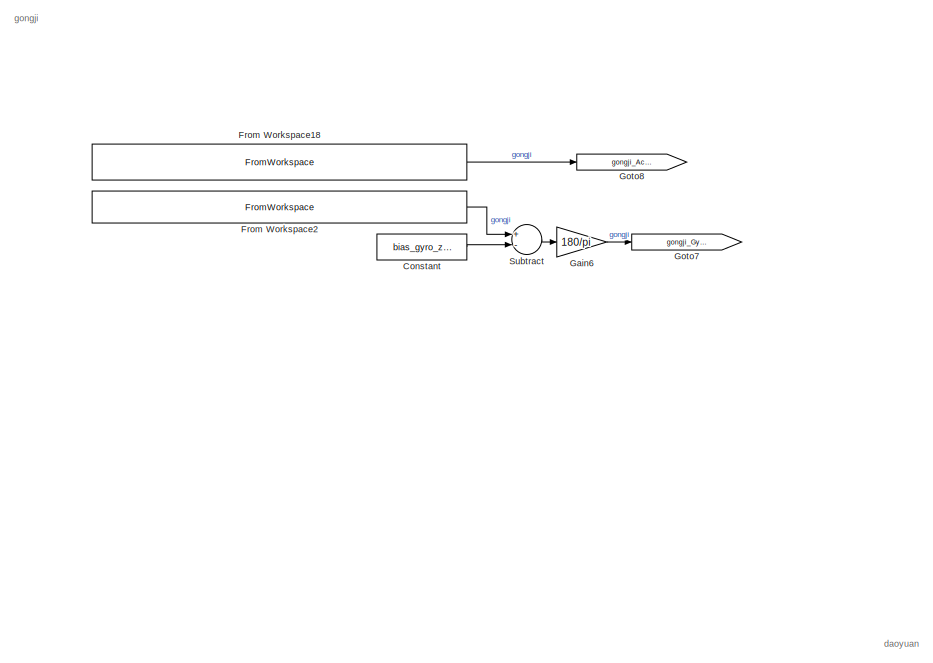
[diagram: root canvas - part 1/4, top left region]
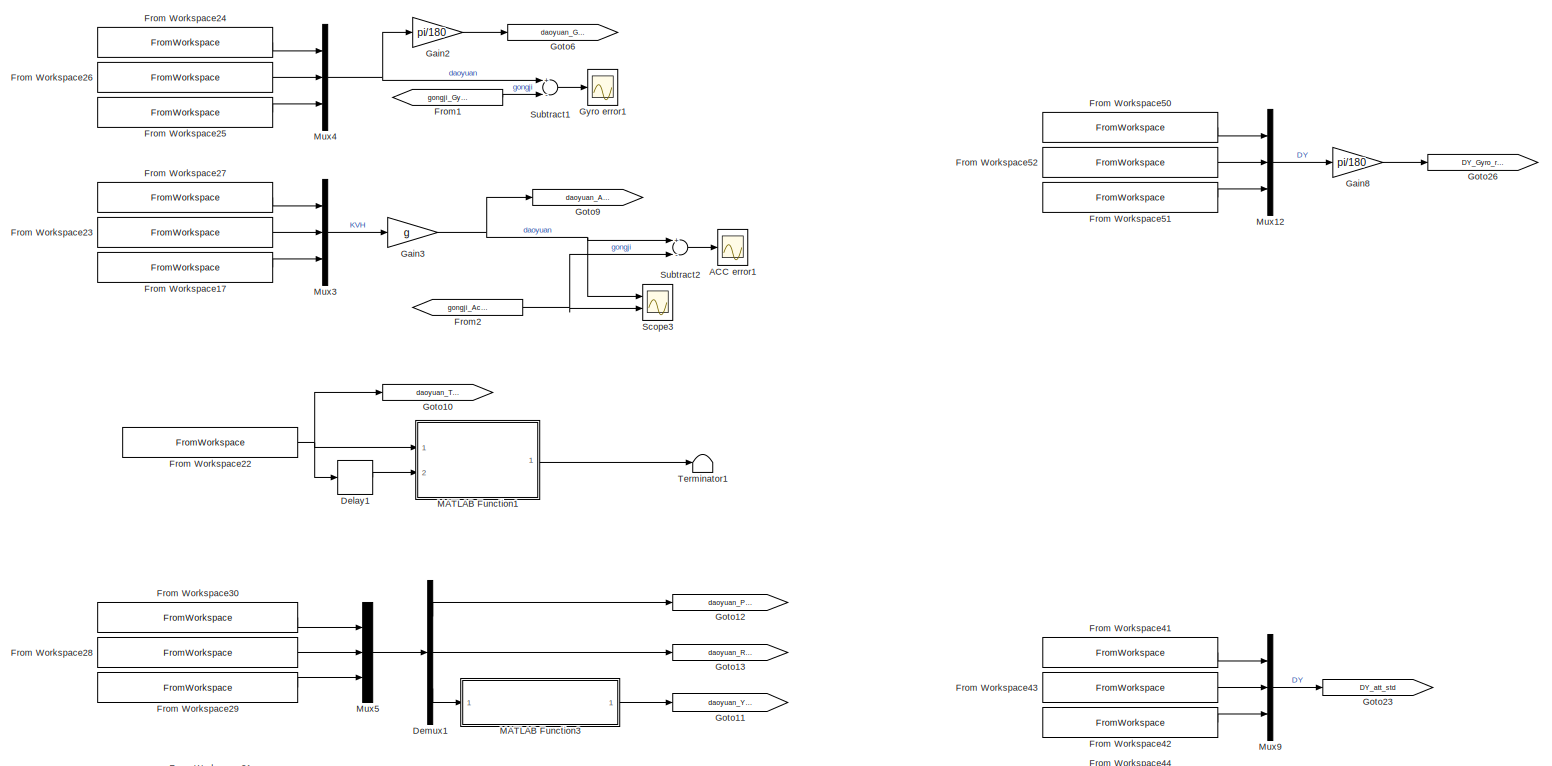
[diagram: root canvas - part 2/4, middle right region]
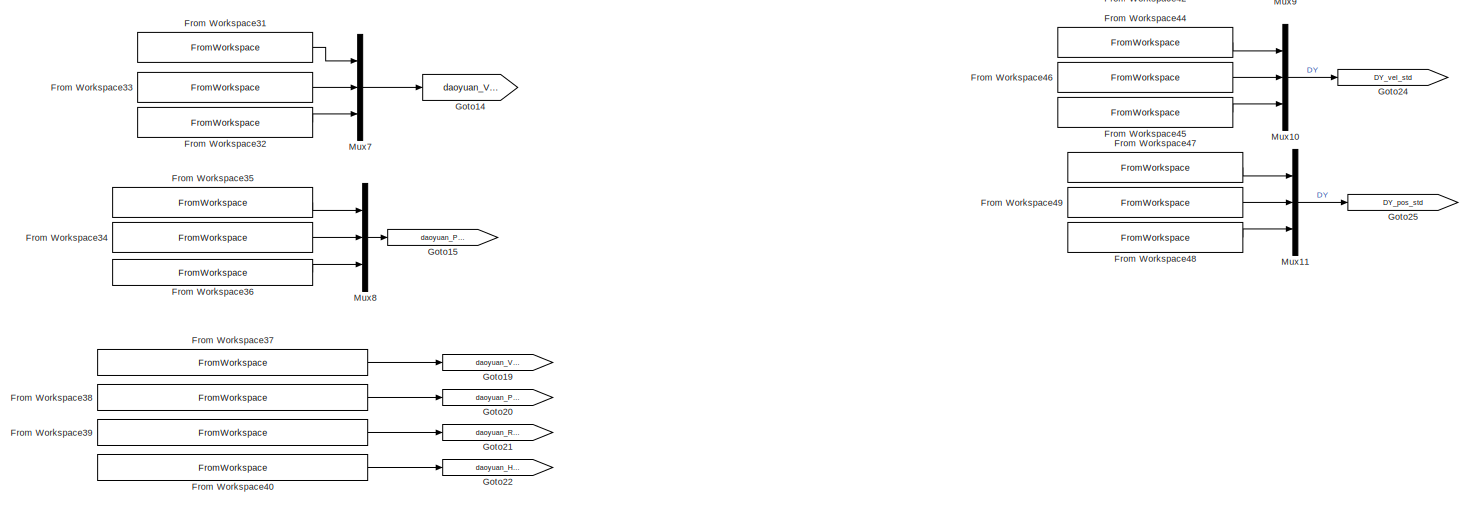
[diagram: root canvas - part 3/4, central region]
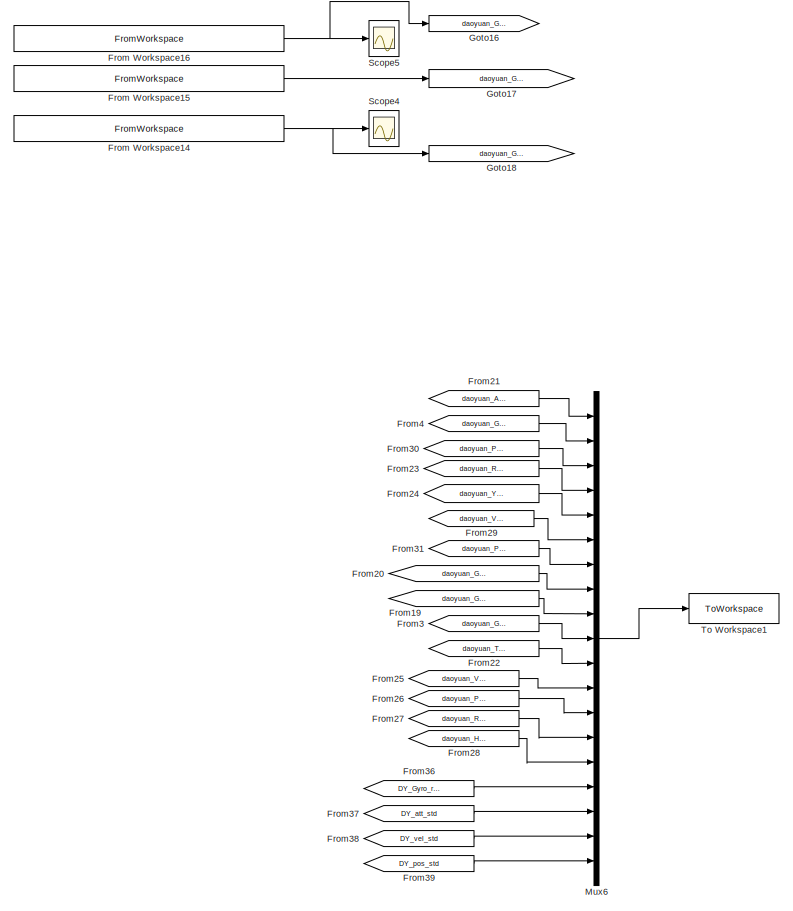
[diagram: root canvas - part 4/4, bottom center region]
MODEL slx_cd019743bb59
KIND model
CONFIG AbsTol = auto
CONFIG EnableMultiTasking = off
CONFIG FixedStep = 0.01
CONFIG MaxStep = 0.01
CONFIG MinStep = auto
CONFIG RelTol = 1e-3
CONFIG SampleTimeConstraint = Unconstrained
CONFIG Solver = ode3
CONFIG SolverName = ode3
CONFIG StartTime = 0.0
CONFIG StopTime = 6000
BLOCK [Scope] ACC error1
  Floating = off
  NumInputPorts = 1
  Ports = [1]
  ScopeSpecificationString = Simulink.scopes.TimeScopeBlockCfg('CurrentConfiguration', extmgr.ConfigurationSet(extmgr.Configuration('Core','General UI',true),extmgr.Configuration('Core','Source UI',true),extmgr.Configuration('Sources','WiredSimulink',true,'DataLoggingVariableName','ScopeData1','DataLoggingSaveFormat','StructureWithTime','DataLoggingDecimation','1','DataLoggingDecimateData',true),extmgr.Configuration('Visuals'...<+1606ch>
BLOCK [Constant] Constant
  Value = bias_gyro_z_gongji
BLOCK [Delay] Delay1
  DelayLength = 1
  InitialCondition = 0
  InputPortMap = u0
  Ports = [1, 1]
BLOCK [Demux] Demux1
  DisplayOption = bar
  Outputs = 3
  Ports = [1, 3]
BLOCK [FromWorkspace] From Workspace14
  Interpolate = off
  OutputAfterFinalValue = Holding final value
  VariableName = [T_GNSS_daoyuan,data_daoyuan.GPSData.NumSV]
  ZeroCross = on
BLOCK [FromWorkspace] From Workspace15
  Interpolate = off
  OutputAfterFinalValue = Holding final value
  VariableName = [T_GNSS_daoyuan,data_daoyuan.GPSData.heading]
  ZeroCross = on
BLOCK [FromWorkspace] From Workspace16
  Interpolate = off
  OutputAfterFinalValue = Holding final value
  VariableName = [T_GNSS_daoyuan,data_daoyuan.GPSData.Lat]
  ZeroCross = on
BLOCK [FromWorkspace] From Workspace17
  Interpolate = off
  OutputAfterFinalValue = Holding final value
  VariableName = [T_INS_daoyuan,-data_daoyuan.INSData.a(:,3)]
  ZeroCross = on
BLOCK [FromWorkspace] From Workspace18
  Interpolate = off
  OutputAfterFinalValue = Holding final value
  VariableName = [Time,RawData_table.IMU_ACC_x,RawData_table.IMU_ACC_y,RawData_table.IMU_ACC_z]
  ZeroCross = on
BLOCK [FromWorkspace] From Workspace2
  Interpolate = off
  OutputAfterFinalValue = Holding final value
  VariableName = [Time,RawData_table.IMU_Gyro_x,RawData_table.IMU_Gyro_y,RawData_table.IMU_Gyro_z]
  ZeroCross = on
BLOCK [FromWorkspace] From Workspace22
  Interpolate = off
  OutputAfterFinalValue = Holding final value
  VariableName = [T_INS_daoyuan,T_INS_daoyuan]
  ZeroCross = on
BLOCK [FromWorkspace] From Workspace23
  Interpolate = off
  OutputAfterFinalValue = Holding final value
  VariableName = [T_INS_daoyuan,data_daoyuan.INSData.a(:,1)]
  ZeroCross = on
BLOCK [FromWorkspace] From Workspace24
  Interpolate = off
  OutputAfterFinalValue = Holding final value
  VariableName = [T_INS_daoyuan,data_daoyuan.INSData.g(:,2)]
  ZeroCross = on
BLOCK [FromWorkspace] From Workspace25
  Interpolate = off
  OutputAfterFinalValue = Holding final value
  VariableName = [T_INS_daoyuan,-data_daoyuan.INSData.g(:,3)]
  ZeroCross = on
BLOCK [FromWorkspace] From Workspace26
  Interpolate = off
  OutputAfterFinalValue = Holding final value
  VariableName = [T_INS_daoyuan,data_daoyuan.INSData.g(:,1)]
  ZeroCross = on
BLOCK [FromWorkspace] From Workspace27
  Interpolate = off
  OutputAfterFinalValue = Holding final value
  VariableName = [T_INS_daoyuan,data_daoyuan.INSData.a(:,2)]
  ZeroCross = on
BLOCK [FromWorkspace] From Workspace28
  Interpolate = off
  OutputAfterFinalValue = Holding final value
  VariableName = [T_INS_daoyuan,data_daoyuan.INSData.angle(:,1)]
  ZeroCross = on
BLOCK [FromWorkspace] From Workspace29
  Interpolate = off
  OutputAfterFinalValue = Holding final value
  VariableName = [T_INS_daoyuan,data_daoyuan.INSData.angle(:,3)]
  ZeroCross = on
BLOCK [FromWorkspace] From Workspace30
  Interpolate = off
  OutputAfterFinalValue = Holding final value
  VariableName = [T_INS_daoyuan,data_daoyuan.INSData.angle(:,2)]
  ZeroCross = on
BLOCK [FromWorkspace] From Workspace31
  Interpolate = off
  OutputAfterFinalValue = Holding final value
  VariableName = [T_INS_daoyuan,data_daoyuan.INSData.v(:,2)]
  ZeroCross = on
BLOCK [FromWorkspace] From Workspace32
  Interpolate = off
  OutputAfterFinalValue = Holding final value
  VariableName = [T_INS_daoyuan,-data_daoyuan.INSData.v(:,3)]
  ZeroCross = on
BLOCK [FromWorkspace] From Workspace33
  Interpolate = off
  OutputAfterFinalValue = Holding final value
  VariableName = [T_INS_daoyuan,data_daoyuan.INSData.v(:,1)]
  ZeroCross = on
BLOCK [FromWorkspace] From Workspace34
  Interpolate = off
  OutputAfterFinalValue = Holding final value
  VariableName = [T_INS_daoyuan,data_daoyuan.INSData.pos(:,2)]
  ZeroCross = on
BLOCK [FromWorkspace] From Workspace35
  Interpolate = off
  OutputAfterFinalValue = Holding final value
  VariableName = [T_INS_daoyuan,data_daoyuan.INSData.pos(:,1)]
  ZeroCross = on
BLOCK [FromWorkspace] From Workspace36
  Interpolate = off
  OutputAfterFinalValue = Holding final value
  VariableName = [T_INS_daoyuan,data_daoyuan.INSData.pos(:,3)]
  ZeroCross = on
BLOCK [FromWorkspace] From Workspace37
  Interpolate = off
  OutputAfterFinalValue = Holding final value
  VariableName = [T_INS_daoyuan,data_daoyuan.SelfDefine.V_R]
  ZeroCross = on
BLOCK [FromWorkspace] From Workspace38
  Interpolate = off
  OutputAfterFinalValue = Holding final value
  VariableName = [T_INS_daoyuan,data_daoyuan.SelfDefine.P_R]
  ZeroCross = on
BLOCK [FromWorkspace] From Workspace39
  Interpolate = off
  OutputAfterFinalValue = Holding final value
  VariableName = [T_INS_daoyuan,data_daoyuan.SelfDefine.R2_R]
  ZeroCross = on
BLOCK [FromWorkspace] From Workspace40
  Interpolate = off
  OutputAfterFinalValue = Holding final value
  VariableName = [T_INS_daoyuan,data_daoyuan.SelfDefine.H2_R]
  ZeroCross = on
BLOCK [FromWorkspace] From Workspace41
  Interpolate = off
  OutputAfterFinalValue = Holding final value
  VariableName = [T_INS_DY,RawData_table_DY.pitch_std]
  ZeroCross = on
BLOCK [FromWorkspace] From Workspace42
  Interpolate = off
  OutputAfterFinalValue = Holding final value
  VariableName = [T_INS_DY,RawData_table_DY.yaw_std]
  ZeroCross = on
BLOCK [FromWorkspace] From Workspace43
  Interpolate = off
  OutputAfterFinalValue = Holding final value
  VariableName = [T_INS_DY,RawData_table_DY.roll_std]
  ZeroCross = on
BLOCK [FromWorkspace] From Workspace44
  Interpolate = off
  OutputAfterFinalValue = Holding final value
  VariableName = [T_INS_DY,RawData_table_DY.ve_std]
  ZeroCross = on
BLOCK [FromWorkspace] From Workspace45
  Interpolate = off
  OutputAfterFinalValue = Holding final value
  VariableName = [T_INS_DY,RawData_table_DY.vd_std]
  ZeroCross = on
BLOCK [FromWorkspace] From Workspace46
  Interpolate = off
  OutputAfterFinalValue = Holding final value
  VariableName = [T_INS_DY,RawData_table_DY.vn_std]
  ZeroCross = on
BLOCK [FromWorkspace] From Workspace47
  Interpolate = off
  OutputAfterFinalValue = Holding final value
  VariableName = [T_INS_DY,RawData_table_DY.lat_std]
  ZeroCross = on
BLOCK [FromWorkspace] From Workspace48
  Interpolate = off
  OutputAfterFinalValue = Holding final value
  VariableName = [T_INS_DY,RawData_table_DY.h_std]
  ZeroCross = on
BLOCK [FromWorkspace] From Workspace49
  Interpolate = off
  OutputAfterFinalValue = Holding final value
  VariableName = [T_INS_DY,RawData_table_DY.long_std]
  ZeroCross = on
BLOCK [FromWorkspace] From Workspace50
  Interpolate = off
  OutputAfterFinalValue = Holding final value
  VariableName = [T_INS_DY,RawData_table_DY.Gyro_y]
  ZeroCross = on
BLOCK [FromWorkspace] From Workspace51
  Interpolate = off
  OutputAfterFinalValue = Holding final value
  VariableName = [T_INS_DY,-RawData_table_DY.Gyro_z]
  ZeroCross = on
BLOCK [FromWorkspace] From Workspace52
  Interpolate = off
  OutputAfterFinalValue = Holding final value
  VariableName = [T_INS_DY,RawData_table_DY.Gyro_x]
  ZeroCross = on
BLOCK [From] From1
  GotoTag = gongji_Gyro_degps
BLOCK [From] From19
  GotoTag = daoyuan_GNSS_heading
BLOCK [From] From2
  GotoTag = gongji_Acc_mpss
BLOCK [From] From20
  GotoTag = daoyuan_GNSS_NumSV
BLOCK [From] From21
  GotoTag = daoyuan_Acc_mpss
BLOCK [From] From22
  GotoTag = daoyuan_Time
BLOCK [From] From23
  GotoTag = daoyuan_Roll_deg
BLOCK [From] From24
  GotoTag = daoyuan_Yaw_deg
BLOCK [From] From25
  GotoTag = daoyuan_V_R
BLOCK [From] From26
  GotoTag = daoyuan_P_R
BLOCK [From] From27
  GotoTag = daoyuan_R2_R
BLOCK [From] From28
  GotoTag = daoyuan_H2_R
BLOCK [From] From29
  GotoTag = daoyuan_Vel_mps
BLOCK [From] From3
  GotoTag = daoyuan_GNSS_lat
BLOCK [From] From30
  GotoTag = daoyuan_Pitch_deg
BLOCK [From] From31
  GotoTag = daoyuan_Pos
BLOCK [From] From36
  GotoTag = DY_Gyro_rdps
BLOCK [From] From37
  GotoTag = DY_att_std
BLOCK [From] From38
  GotoTag = DY_vel_std
BLOCK [From] From39
  GotoTag = DY_pos_std
BLOCK [From] From4
  GotoTag = daoyuan_Gyro_rdps
BLOCK [Gain] Gain2
  Gain = pi/180
  OutDataTypeStr = Inherit: Inherit via internal rule
  ParamDataTypeStr = Inherit: Inherit via internal rule
  SaturateOnIntegerOverflow = off
BLOCK [Gain] Gain3
  Gain = g
  OutDataTypeStr = Inherit: Inherit via internal rule
  ParamDataTypeStr = Inherit: Inherit via internal rule
  SaturateOnIntegerOverflow = off
BLOCK [Gain] Gain6
  Gain = 180/pi
  OutDataTypeStr = Inherit: Inherit via internal rule
  ParamDataTypeStr = Inherit: Inherit via internal rule
  SaturateOnIntegerOverflow = off
BLOCK [Gain] Gain8
  Gain = pi/180
  OutDataTypeStr = Inherit: Inherit via internal rule
  ParamDataTypeStr = Inherit: Inherit via internal rule
  SaturateOnIntegerOverflow = off
BLOCK [Goto] Goto10
  GotoTag = daoyuan_Time
BLOCK [Goto] Goto11
  GotoTag = daoyuan_Yaw_deg
BLOCK [Goto] Goto12
  GotoTag = daoyuan_Pitch_deg
BLOCK [Goto] Goto13
  GotoTag = daoyuan_Roll_deg
BLOCK [Goto] Goto14
  GotoTag = daoyuan_Vel_mps
BLOCK [Goto] Goto15
  GotoTag = daoyuan_Pos
BLOCK [Goto] Goto16
  GotoTag = daoyuan_GNSS_lat
BLOCK [Goto] Goto17
  GotoTag = daoyuan_GNSS_heading
BLOCK [Goto] Goto18
  GotoTag = daoyuan_GNSS_NumSV
BLOCK [Goto] Goto19
  GotoTag = daoyuan_V_R
BLOCK [Goto] Goto20
  GotoTag = daoyuan_P_R
BLOCK [Goto] Goto21
  GotoTag = daoyuan_R2_R
BLOCK [Goto] Goto22
  GotoTag = daoyuan_H2_R
BLOCK [Goto] Goto23
  GotoTag = DY_att_std
BLOCK [Goto] Goto24
  GotoTag = DY_vel_std
BLOCK [Goto] Goto25
  GotoTag = DY_pos_std
BLOCK [Goto] Goto26
  GotoTag = DY_Gyro_rdps
BLOCK [Goto] Goto6
  GotoTag = daoyuan_Gyro_rdps
BLOCK [Goto] Goto7
  GotoTag = gongji_Gyro_degps
BLOCK [Goto] Goto8
  GotoTag = gongji_Acc_mpss
BLOCK [Goto] Goto9
  GotoTag = daoyuan_Acc_mpss
BLOCK [Scope] Gyro error1
  Floating = off
  NumInputPorts = 1
  Ports = [1]
  ScopeSpecificationString = Simulink.scopes.TimeScopeBlockCfg('CurrentConfiguration', extmgr.ConfigurationSet(extmgr.Configuration('Core','General UI',true),extmgr.Configuration('Core','Source UI',true),extmgr.Configuration('Sources','WiredSimulink',true,'DataLoggingVariableName','ScopeData2','DataLoggingSaveFormat','StructureWithTime','DataLoggingDecimation','1','DataLoggingDecimateData',true),extmgr.Configuration('Visuals'...<+1704ch>
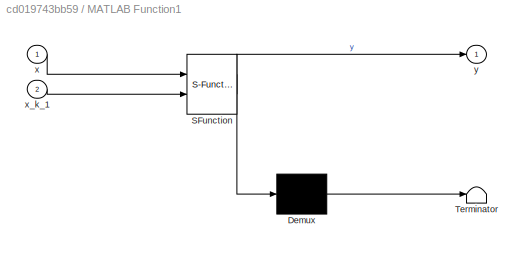
BLOCK [SubSystem] MATLAB Function1
  ErrorFcn = Stateflow.Translate.translate
  PermitHierarchicalResolution = ExplicitOnly
  Ports = [2, 1]
  RequestExecContextInheritance = off
  SFBlockType = MATLAB Function
  TreatAsAtomicUnit = on
BLOCK [Demux] MATLAB Function1/ Demux 
  Outputs = 1
  Ports = [1, 1]
BLOCK [S-Function] MATLAB Function1/ SFunction 
  EnableBusSupport = on
  FunctionName = sf_sfun
  PortCounts = [2 2]
  Ports = [2, 2]
  SFcnIsStateOwnerBlock = off
  SFunctionDeploymentMode = off
  Tag = Stateflow S-Function 1
BLOCK [Terminator] MATLAB Function1/ Terminator 
BLOCK [Inport] MATLAB Function1/x
  IconDisplay = Port number
BLOCK [Inport] MATLAB Function1/x_k_1
  IconDisplay = Port number
  Port = 2
BLOCK [Outport] MATLAB Function1/y
  IconDisplay = Port number
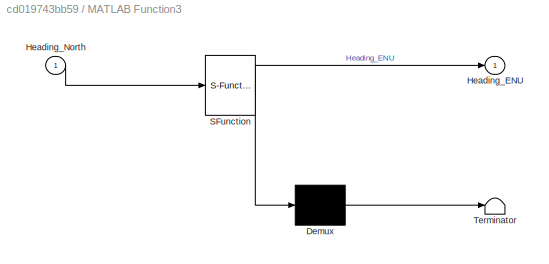
BLOCK [SubSystem] MATLAB Function3
  ErrorFcn = Stateflow.Translate.translate
  PermitHierarchicalResolution = ExplicitOnly
  Ports = [1, 1]
  RequestExecContextInheritance = off
  SFBlockType = MATLAB Function
  TreatAsAtomicUnit = on
BLOCK [Demux] MATLAB Function3/ Demux 
  Outputs = 1
  Ports = [1, 1]
BLOCK [S-Function] MATLAB Function3/ SFunction 
  EnableBusSupport = on
  FunctionName = sf_sfun
  PortCounts = [1 2]
  Ports = [1, 2]
  SFcnIsStateOwnerBlock = off
  SFunctionDeploymentMode = off
  Tag = Stateflow S-Function 2
BLOCK [Terminator] MATLAB Function3/ Terminator 
BLOCK [Outport] MATLAB Function3/Heading_ENU
  IconDisplay = Port number
BLOCK [Inport] MATLAB Function3/Heading_North
  IconDisplay = Port number
BLOCK [Mux] Mux10
  DisplayOption = bar
  Inputs = 3
  Ports = [3, 1]
BLOCK [Mux] Mux11
  DisplayOption = bar
  Inputs = 3
  Ports = [3, 1]
BLOCK [Mux] Mux12
  DisplayOption = bar
  Inputs = 3
  Ports = [3, 1]
BLOCK [Mux] Mux3
  DisplayOption = bar
  Inputs = 3
  Ports = [3, 1]
BLOCK [Mux] Mux4
  DisplayOption = bar
  Inputs = 3
  Ports = [3, 1]
BLOCK [Mux] Mux5
  DisplayOption = bar
  Inputs = 3
  Ports = [3, 1]
BLOCK [Mux] Mux6
  DisplayOption = bar
  Inputs = 19
  Ports = [19, 1]
BLOCK [Mux] Mux7
  DisplayOption = bar
  Inputs = 3
  Ports = [3, 1]
BLOCK [Mux] Mux8
  DisplayOption = bar
  Inputs = 3
  Ports = [3, 1]
BLOCK [Mux] Mux9
  DisplayOption = bar
  Inputs = 3
  Ports = [3, 1]
BLOCK [Scope] Scope3
  Floating = off
  NumInputPorts = 2
  Ports = [2]
  ScopeSpecificationString = Simulink.scopes.TimeScopeBlockCfg('CurrentConfiguration', extmgr.ConfigurationSet(extmgr.Configuration('Core','General UI',true),extmgr.Configuration('Core','Source UI',true),extmgr.Configuration('Sources','WiredSimulink',true,'DataLoggingVariableName','ScopeData3','DataLoggingSaveFormat','StructureWithTime','DataLoggingDecimation','1','DataLoggingDecimateData',true),extmgr.Configuration('Visuals'...<+1819ch>
BLOCK [Scope] Scope4
  Floating = off
  NumInputPorts = 1
  Ports = [1]
  ScopeSpecificationString = Simulink.scopes.TimeScopeBlockCfg('CurrentConfiguration', extmgr.ConfigurationSet(extmgr.Configuration('Core','General UI',true),extmgr.Configuration('Core','Source UI',true),extmgr.Configuration('Sources','WiredSimulink',true,'DataLoggingVariableName','ScopeData4','DataLoggingSaveFormat','StructureWithTime','DataLoggingDecimation','1','DataLoggingDecimateData',true),extmgr.Configuration('Visuals'...<+1775ch>
BLOCK [Scope] Scope5
  Floating = off
  NumInputPorts = 1
  Ports = [1]
  ScopeSpecificationString = Simulink.scopes.TimeScopeBlockCfg('CurrentConfiguration', extmgr.ConfigurationSet(extmgr.Configuration('Core','General UI',true),extmgr.Configuration('Core','Source UI',true),extmgr.Configuration('Sources','WiredSimulink',true,'DataLoggingVariableName','ScopeData5','DataLoggingSaveFormat','StructureWithTime','DataLoggingDecimation','1','DataLoggingDecimateData',true),extmgr.Configuration('Visuals'...<+1829ch>
BLOCK [Sum] Subtract
  InputSameDT = off
  Inputs = +-
  OutDataTypeStr = Inherit: Inherit via internal rule
  Ports = [2, 1]
  SaturateOnIntegerOverflow = off
BLOCK [Sum] Subtract1
  InputSameDT = off
  Inputs = +-
  OutDataTypeStr = Inherit: Inherit via internal rule
  Ports = [2, 1]
  SaturateOnIntegerOverflow = off
BLOCK [Sum] Subtract2
  InputSameDT = off
  Inputs = +-
  OutDataTypeStr = Inherit: Inherit via internal rule
  Ports = [2, 1]
  SaturateOnIntegerOverflow = off
BLOCK [Terminator] Terminator1
BLOCK [ToWorkspace] To Workspace1
  FixptAsFi = on
  MaxDataPoints = inf
  Ports = [1]
  SampleTime = -1
  SaveFormat = Structure With Time
  VariableName = daoyuan_gongji
ANNOTATION (root): daoyuan
ANNOTATION (root): gongji
LINE Constant:1 -> Subtract:2
LINE Delay1:1 -> MATLAB Function1:2
LINE Demux1:1 -> Goto12:1
LINE Demux1:2 -> Goto13:1
LINE Demux1:3 -> MATLAB Function3:1
NET From Workspace14:1 -> Goto18:1, Scope4:1
LINE From Workspace15:1 -> Goto17:1
NET From Workspace16:1 -> Goto16:1, Scope5:1
LINE From Workspace17:1 -> Mux3:3
LINE From Workspace18:1 -> Goto8:1
NET From Workspace22:1 -> Delay1:1, Goto10:1, MATLAB Function1:1
LINE From Workspace23:1 -> Mux3:2
LINE From Workspace24:1 -> Mux4:1
LINE From Workspace25:1 -> Mux4:3
LINE From Workspace26:1 -> Mux4:2
LINE From Workspace27:1 -> Mux3:1
LINE From Workspace28:1 -> Mux5:2
LINE From Workspace29:1 -> Mux5:3
LINE From Workspace2:1 -> Subtract:1
LINE From Workspace30:1 -> Mux5:1
LINE From Workspace31:1 -> Mux7:1
LINE From Workspace32:1 -> Mux7:3
LINE From Workspace33:1 -> Mux7:2
LINE From Workspace34:1 -> Mux8:2
LINE From Workspace35:1 -> Mux8:1
LINE From Workspace36:1 -> Mux8:3
LINE From Workspace37:1 -> Goto19:1
LINE From Workspace38:1 -> Goto20:1
LINE From Workspace39:1 -> Goto21:1
LINE From Workspace40:1 -> Goto22:1
LINE From Workspace41:1 -> Mux9:1
LINE From Workspace42:1 -> Mux9:3
LINE From Workspace43:1 -> Mux9:2
LINE From Workspace44:1 -> Mux10:1
LINE From Workspace45:1 -> Mux10:3
LINE From Workspace46:1 -> Mux10:2
LINE From Workspace47:1 -> Mux11:1
LINE From Workspace48:1 -> Mux11:3
LINE From Workspace49:1 -> Mux11:2
LINE From Workspace50:1 -> Mux12:1
LINE From Workspace51:1 -> Mux12:3
LINE From Workspace52:1 -> Mux12:2
LINE From19:1 -> Mux6:9
LINE From1:1 -> Subtract1:2
LINE From20:1 -> Mux6:8
LINE From21:1 -> Mux6:1
LINE From22:1 -> Mux6:11
LINE From23:1 -> Mux6:4
LINE From24:1 -> Mux6:5
LINE From25:1 -> Mux6:12
LINE From26:1 -> Mux6:13
LINE From27:1 -> Mux6:14
LINE From28:1 -> Mux6:15
LINE From29:1 -> Mux6:6
NET From2:1 -> Scope3:2, Subtract2:2
LINE From30:1 -> Mux6:3
LINE From31:1 -> Mux6:7
LINE From36:1 -> Mux6:16
LINE From37:1 -> Mux6:17
LINE From38:1 -> Mux6:18
LINE From39:1 -> Mux6:19
LINE From3:1 -> Mux6:10
LINE From4:1 -> Mux6:2
LINE Gain2:1 -> Goto6:1
NET Gain3:1 -> Goto9:1, Scope3:1, Subtract2:1
LINE Gain6:1 -> Goto7:1
LINE Gain8:1 -> Goto26:1
LINE MATLAB Function1:1 -> Terminator1:1
LINE MATLAB Function3:1 -> Goto11:1
LINE Mux10:1 -> Goto24:1
LINE Mux11:1 -> Goto25:1
LINE Mux12:1 -> Gain8:1
LINE Mux3:1 -> Gain3:1
NET Mux4:1 -> Gain2:1, Subtract1:1
LINE Mux5:1 -> Demux1:1
LINE Mux6:1 -> To Workspace1:1
LINE Mux7:1 -> Goto14:1
LINE Mux8:1 -> Goto15:1
LINE Mux9:1 -> Goto23:1
LINE Subtract1:1 -> Gyro error1:1
LINE Subtract2:1 -> ACC error1:1
LINE Subtract:1 -> Gain6:1
note: NET lines group one-source signal fan-out (src -> all destinations, sorted); 1:1 wires keep LINE
CHART MATLAB Function1 states=1 transitions=1
  STATE_LABEL 'eML_blk_kernel()'
  STATE_LABEL 'SCRIPT:\nfunction y  = fcn(x,x_k_1)\n    if x ~= x_k_1\n        y = uint8(1);\n    else\n        y = uint8(0);\n    end\nend'
CHART MATLAB Function3 states=1 transitions=1
  STATE_LABEL 'eML_blk_kernel()'
  STATE_LABEL 'SCRIPT:\nfunction Heading_ENU = fcn(Heading_North)\n% Heading_ENU:以北为零顺时针为正0-360°\n% Heading_North:以北为零逆时针为正-180-180°\n\n% Heading_North = Heading_North + 0.5 + 3.8;\nif Heading_North <= 180\n    Heading_ENU = 0 - Heading_North;\nelse\n    Heading_ENU = 360 - Heading_North;\nend'
